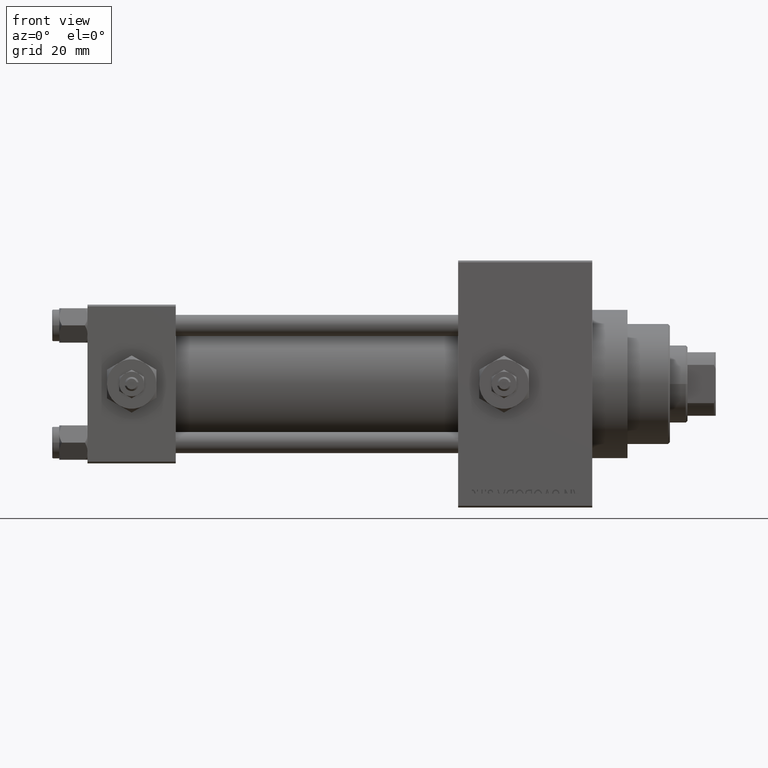
[diagram: clean part render]
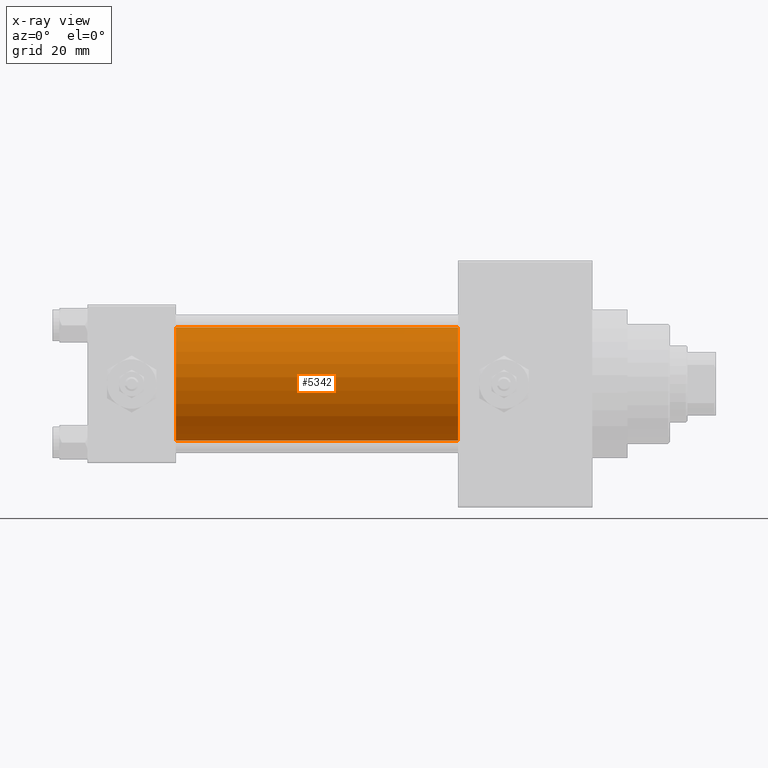
[diagram: x-ray — body ghosted, one internal face saturated and labeled with its STEP entity id]
A machine part, front view, then the same camera in x-ray: the body is ghosted and one INTERNAL B-rep face — a face not visible from any outside direction — is saturated and labeled: STEP entity #5342.
In plain terms, the highlighted cylindrical surface (partial cylindrical patch) has radius 16 mm, axis along (-1, -0, -0).
Its self-contained STEP definition (entity closure, byte-faithful):
#831 = CARTESIAN_POINT ( 'NONE',  ( 25.00000000000000000, -2.602085213965210642E-15, 0.000000000000000000 ) ) ;
#1580 = EDGE_CURVE ( 'NONE', #41079, #6903, #32002, .T. ) ;
#1900 = EDGE_LOOP ( 'NONE', ( #22106, #47549, #3605, #28246 ) ) ;
#3605 = ORIENTED_EDGE ( 'NONE', *, *, #46855, .F. ) ;
#3768 = VERTEX_POINT ( 'NONE', #7532 ) ;
#5342 = ADVANCED_FACE ( 'NONE', ( #46140 ), #27286, .F. ) ;
#5392 = DIRECTION ( 'NONE',  ( 1.000000000000000000, 0.000000000000000000, 0.000000000000000000 ) ) ;
#6712 = CARTESIAN_POINT ( 'NONE',  ( 105.0000000000000142, -6.426503353294456087E-16, -16.00000000000000000 ) ) ;
#6903 = VERTEX_POINT ( 'NONE', #13609 ) ;
#7035 = AXIS2_PLACEMENT_3D ( 'NONE', #831, #9231, #27145 ) ;
#7178 = AXIS2_PLACEMENT_3D ( 'NONE', #42420, #12379, #27530 ) ;
#7532 = CARTESIAN_POINT ( 'NONE',  ( 25.00000000000000000, -6.426503353294456087E-16, -16.00000000000000000 ) ) ;
#9231 = DIRECTION ( 'NONE',  ( 1.000000000000000000, 0.000000000000000000, 0.000000000000000000 ) ) ;
#10323 = CARTESIAN_POINT ( 'NONE',  ( 105.0000000000000142, -2.602085213965210642E-15, 0.000000000000000000 ) ) ;
#12379 = DIRECTION ( 'NONE',  ( -1.000000000000000000, -0.000000000000000000, -0.000000000000000000 ) ) ;
#13609 = CARTESIAN_POINT ( 'NONE',  ( 25.00000000000000000, -2.602085213965210642E-15, 16.00000000000000000 ) ) ;
#15429 = EDGE_CURVE ( 'NONE', #33795, #3768, #34031, .T. ) ;
#22106 = ORIENTED_EDGE ( 'NONE', *, *, #38971, .T. ) ;
#24329 = CIRCLE ( 'NONE', #35426, 16.00000000000000000 ) ;
#27145 = DIRECTION ( 'NONE',  ( 0.000000000000000000, 0.000000000000000000, -1.000000000000000000 ) ) ;
#27286 = CYLINDRICAL_SURFACE ( 'NONE', #7178, 16.00000000000000000 ) ;
#27530 = DIRECTION ( 'NONE',  ( 0.000000000000000000, 0.000000000000000000, 1.000000000000000000 ) ) ;
#28246 = ORIENTED_EDGE ( 'NONE', *, *, #1580, .F. ) ;
#28759 = CARTESIAN_POINT ( 'NONE',  ( 105.0000000000000142, -2.602085213965210642E-15, 16.00000000000000000 ) ) ;
#29794 = DIRECTION ( 'NONE',  ( -1.000000000000000000, -0.000000000000000000, -0.000000000000000000 ) ) ;
#32002 = LINE ( 'NONE', #28759, #48922 ) ;
#33795 = VERTEX_POINT ( 'NONE', #6712 ) ;
#34031 = LINE ( 'NONE', #40732, #36962 ) ;
#35426 = AXIS2_PLACEMENT_3D ( 'NONE', #10323, #5392, #43603 ) ;
#36962 = VECTOR ( 'NONE', #29794, 1000.000000000000000 ) ;
#37134 = CIRCLE ( 'NONE', #7035, 16.00000000000000000 ) ;
#38971 = EDGE_CURVE ( 'NONE', #41079, #33795, #24329, .T. ) ;
#40732 = CARTESIAN_POINT ( 'NONE',  ( 105.0000000000000142, -6.426503353294456087E-16, -16.00000000000000000 ) ) ;
#40911 = CARTESIAN_POINT ( 'NONE',  ( 105.0000000000000142, -2.602085213965210642E-15, 16.00000000000000000 ) ) ;
#41079 = VERTEX_POINT ( 'NONE', #40911 ) ;
#42420 = CARTESIAN_POINT ( 'NONE',  ( 105.0000000000000142, -2.602085213965210642E-15, 0.000000000000000000 ) ) ;
#43603 = DIRECTION ( 'NONE',  ( 0.000000000000000000, 0.000000000000000000, -1.000000000000000000 ) ) ;
#46140 = FACE_OUTER_BOUND ( 'NONE', #1900, .T. ) ;
#46855 = EDGE_CURVE ( 'NONE', #6903, #3768, #37134, .T. ) ;
#47549 = ORIENTED_EDGE ( 'NONE', *, *, #15429, .T. ) ;
#47622 = DIRECTION ( 'NONE',  ( -1.000000000000000000, -0.000000000000000000, -0.000000000000000000 ) ) ;
#48922 = VECTOR ( 'NONE', #47622, 1000.000000000000000 ) ;